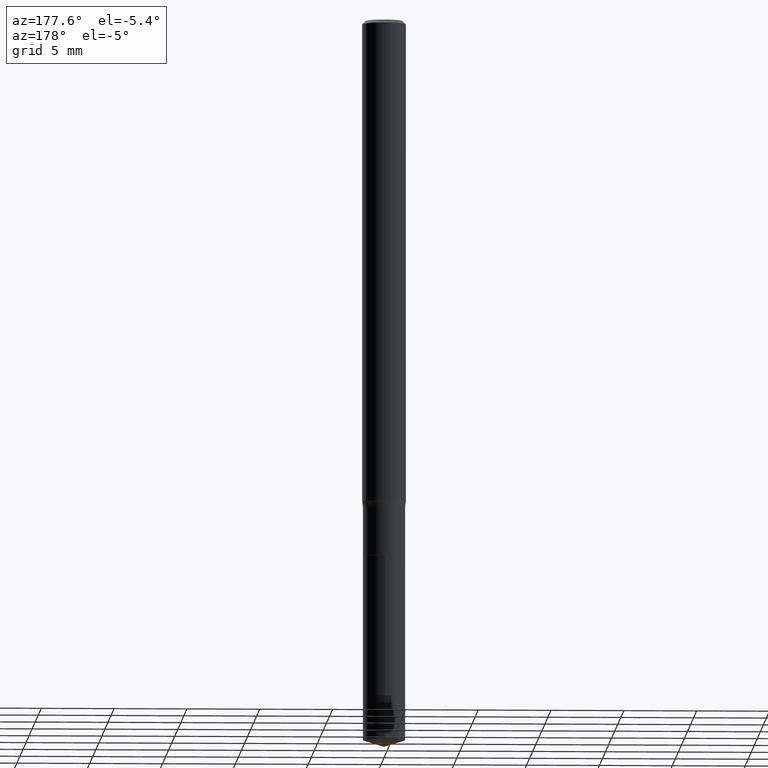
[diagram: clean part render]
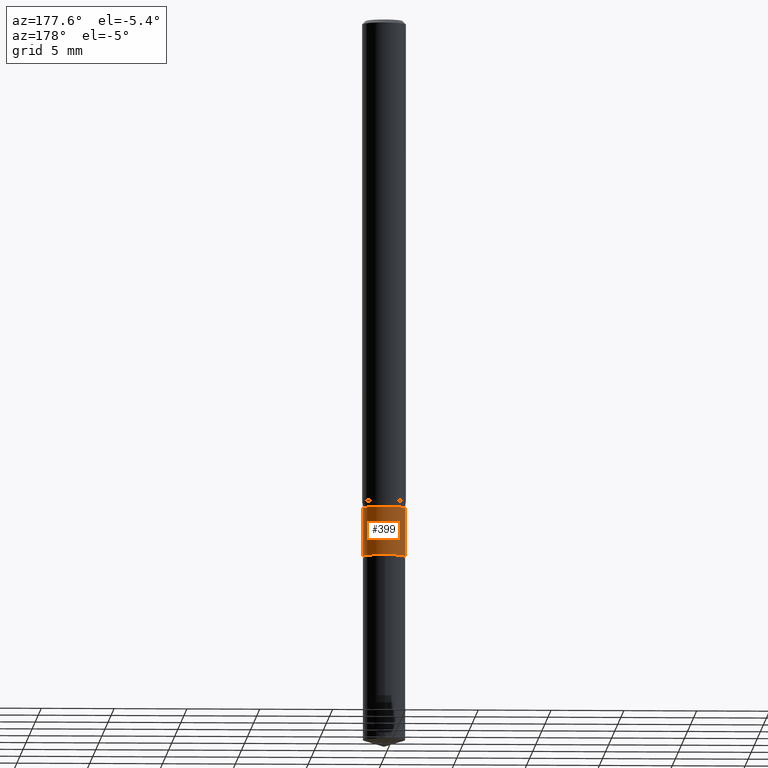
[diagram: same view with one face highlighted and labeled with its STEP entity id]
A machine part, auxiliary view. The second image highlights one B-rep face of the part: STEP entity #399.
In plain terms, the highlighted cylindrical surface (edge-blend (fillet) strip) has radius 1.4503 mm, axis along (-0, 0, 1).
Its self-contained STEP definition (entity closure, byte-faithful):
#2 = VERTEX_POINT ( 'NONE', #347 ) ;
#17 = CARTESIAN_POINT ( 'NONE',  ( 3.231687027373658286E-29, -4.613992589281217737E-15, -1.321500000000000119 ) ) ;
#18 = DIRECTION ( 'NONE',  ( 1.000000000000000000, -6.982962677686262766E-15, 0.000000000000000000 ) ) ;
#31 = DIRECTION ( 'NONE',  ( -2.445468806185136597E-29, 3.491481338843145583E-15, 1.000000000000000000 ) ) ;
#48 = AXIS2_PLACEMENT_3D ( 'NONE', #392, #290, #212 ) ;
#66 = VERTEX_POINT ( 'NONE', #321 ) ;
#73 = CARTESIAN_POINT ( 'NONE',  ( 3.551554347222674167E-29, -5.070678348401900425E-15, -1.452299999999999924 ) ) ;
#74 = ORIENTED_EDGE ( 'NONE', *, *, #131, .F. ) ;
#123 = EDGE_CURVE ( 'NONE', #386, #66, #395, .T. ) ;
#131 = EDGE_CURVE ( 'NONE', #66, #2, #193, .T. ) ;
#163 = CYLINDRICAL_SURFACE ( 'NONE', #48, 0.05709999999999997716 ) ;
#193 = CIRCLE ( 'NONE', #362, 0.05709999999999997022 ) ;
#201 = VECTOR ( 'NONE', #357, 39.37007874015748143 ) ;
#212 = DIRECTION ( 'NONE',  ( 1.000000000000000000, -6.982962677686266711E-15, 4.876176775795935793E-29 ) ) ;
#221 = CIRCLE ( 'NONE', #491, 0.05709999999999998410 ) ;
#229 = CARTESIAN_POINT ( 'NONE',  ( -0.05709999999999998410, -4.436615566722541594E-15, -1.452299999999999924 ) ) ;
#253 = CARTESIAN_POINT ( 'NONE',  ( 0.05709999999999998410, -5.469405517297786040E-15, -1.452299999999999924 ) ) ;
#269 = VERTEX_POINT ( 'NONE', #229 ) ;
#290 = DIRECTION ( 'NONE',  ( -2.445468806185136597E-29, 3.491481338843145583E-15, 1.000000000000000000 ) ) ;
#294 = EDGE_CURVE ( 'NONE', #386, #269, #221, .T. ) ;
#313 = LINE ( 'NONE', #384, #201 ) ;
#321 = CARTESIAN_POINT ( 'NONE',  ( 0.05709999999999997022, -5.012719758177102563E-15, -1.321500000000000119 ) ) ;
#338 = EDGE_LOOP ( 'NONE', ( #411, #400, #74, #364 ) ) ;
#343 = DIRECTION ( 'NONE',  ( 1.000000000000000000, -6.982962677686261189E-15, 0.000000000000000000 ) ) ;
#347 = CARTESIAN_POINT ( 'NONE',  ( -0.05709999999999997022, -4.436615566722541594E-15, -1.321500000000000119 ) ) ;
#357 = DIRECTION ( 'NONE',  ( -2.445468806185136877E-29, 3.491481338843145188E-15, 1.000000000000000000 ) ) ;
#362 = AXIS2_PLACEMENT_3D ( 'NONE', #17, #403, #18 ) ;
#363 = CARTESIAN_POINT ( 'NONE',  ( 0.05709999999999997716, -3.987271688958856639E-16, 2.784296938979478177E-30 ) ) ;
#364 = ORIENTED_EDGE ( 'NONE', *, *, #123, .F. ) ;
#384 = CARTESIAN_POINT ( 'NONE',  ( -0.05709999999999997716, 4.057199021190170439E-16, -2.808711936535549889E-30 ) ) ;
#386 = VERTEX_POINT ( 'NONE', #253 ) ;
#392 = CARTESIAN_POINT ( 'NONE',  ( 0.000000000000000000, 0.000000000000000000, 0.000000000000000000 ) ) ;
#395 = LINE ( 'NONE', #363, #429 ) ;
#399 = ADVANCED_FACE ( 'NONE', ( #425 ), #163, .T. ) ;
#400 = ORIENTED_EDGE ( 'NONE', *, *, #440, .T. ) ;
#403 = DIRECTION ( 'NONE',  ( -2.445468806185136597E-29, 3.491481338843145583E-15, 1.000000000000000000 ) ) ;
#411 = ORIENTED_EDGE ( 'NONE', *, *, #294, .T. ) ;
#425 = FACE_OUTER_BOUND ( 'NONE', #338, .T. ) ;
#429 = VECTOR ( 'NONE', #477, 39.37007874015748143 ) ;
#440 = EDGE_CURVE ( 'NONE', #269, #2, #313, .T. ) ;
#477 = DIRECTION ( 'NONE',  ( -2.445468806185136877E-29, 3.491481338843145188E-15, 1.000000000000000000 ) ) ;
#491 = AXIS2_PLACEMENT_3D ( 'NONE', #73, #31, #343 ) ;